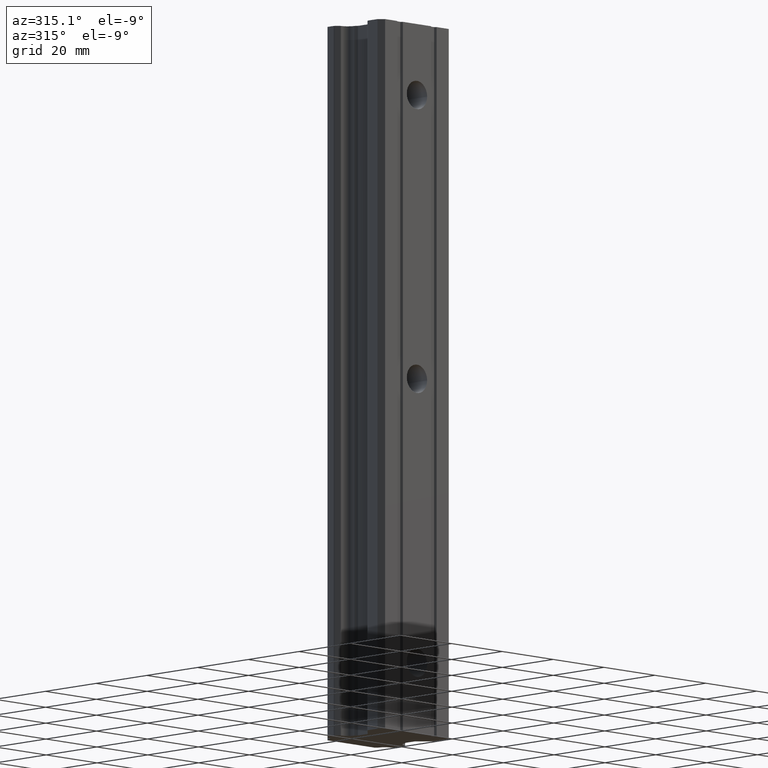
[diagram: clean part render]
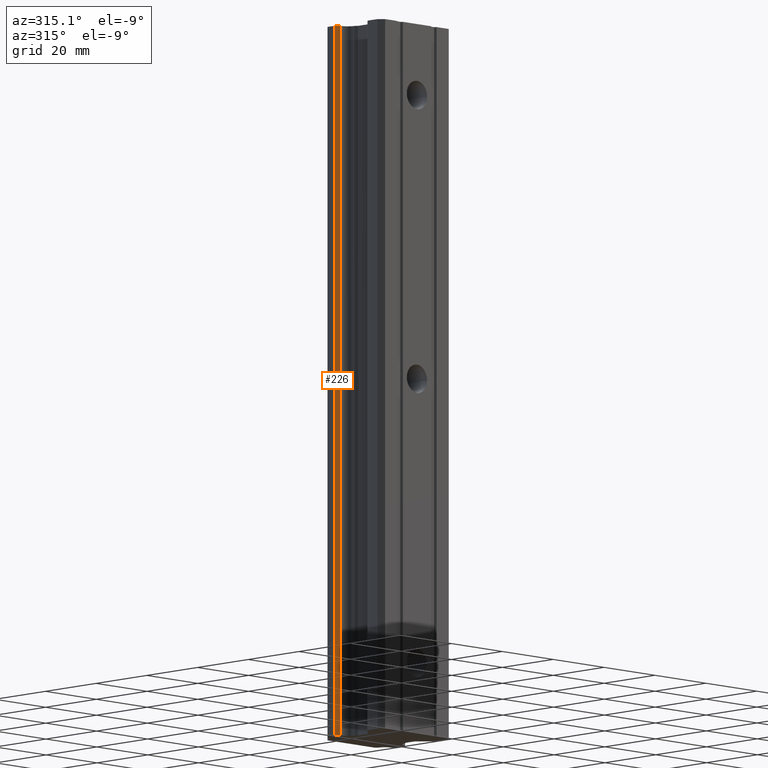
[diagram: same view with one face highlighted and labeled with its STEP entity id]
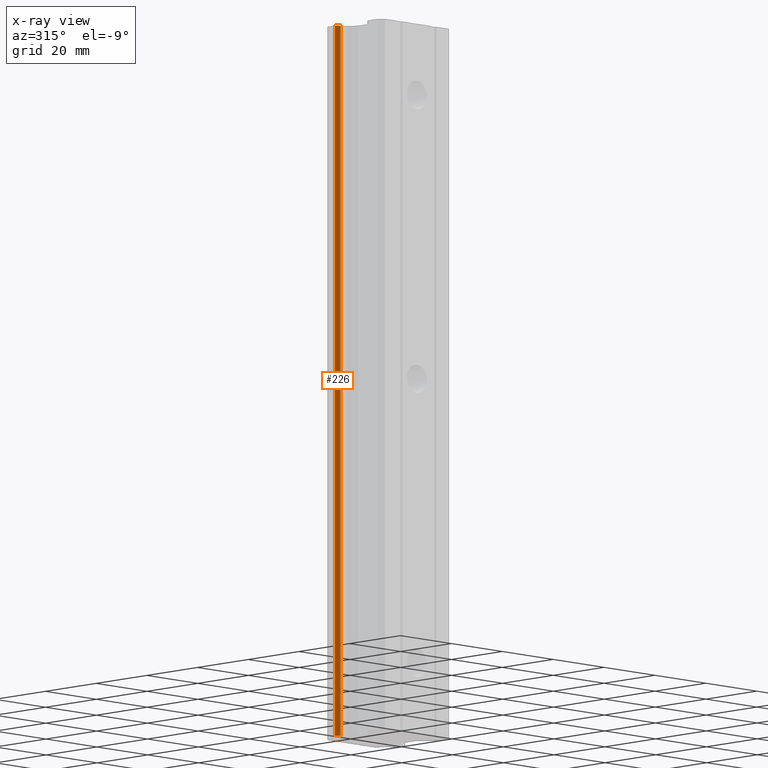
[diagram: x-ray of the same camera — body ghosted, the highlighted face saturated]
A machine part, auxiliary view. The second image highlights one B-rep face of the part: STEP entity #226.
The next image is the same camera in x-ray: the body ghosted, the highlighted face saturated — about 0% of this face is hidden behind the body in this view.
In plain terms, the highlighted planar face has unit normal (-0.7071, -0.7071, 0).
Its self-contained STEP definition (entity closure, byte-faithful):
#152 = ORIENTED_EDGE ( 'NONE', *, *, #153, .T. ) ;
#153 = EDGE_CURVE ( 'NONE', #201, #231, #990, .T. ) ;
#196 = ORIENTED_EDGE ( 'NONE', *, *, #197, .T. ) ;
#197 = EDGE_CURVE ( 'NONE', #230, #198, #1203, .T. ) ;
#198 = VERTEX_POINT ( 'NONE', #1199 ) ;
#199 = ORIENTED_EDGE ( 'NONE', *, *, #200, .F. ) ;
#200 = EDGE_CURVE ( 'NONE', #201, #198, #1198, .T. ) ;
#201 = VERTEX_POINT ( 'NONE', #1241 ) ;
#226 = ADVANCED_FACE ( 'NONE', ( #1103 ), #1101, .T. ) ;
#227 = EDGE_LOOP ( 'NONE', ( #228, #196, #199, #152 ) ) ;
#228 = ORIENTED_EDGE ( 'NONE', *, *, #229, .F. ) ;
#229 = EDGE_CURVE ( 'NONE', #230, #231, #1102, .T. ) ;
#230 = VERTEX_POINT ( 'NONE', #1173 ) ;
#231 = VERTEX_POINT ( 'NONE', #1172 ) ;
#983 = DIRECTION ( 'NONE',  ( -0.7071067811863974700, 0.7071067811866975600, 0.0000000000000000000 ) ) ;
#984 = VECTOR ( 'NONE', #983, 1000.000000000000100 ) ;
#985 = CARTESIAN_POINT ( 'NONE',  ( -13.82426406871000100, -7.437416476490000200, 100.0000000000000000 ) ) ;
#990 = LINE ( 'NONE', #985, #984 ) ;
#1098 = DIRECTION ( 'NONE',  ( -0.7071067811866975600, -0.7071067811863974700, 0.0000000000000000000 ) ) ;
#1099 = CARTESIAN_POINT ( 'NONE',  ( -13.82426406871000100, -7.437416476490000200, -100.0000000000000000 ) ) ;
#1100 = AXIS2_PLACEMENT_3D ( 'NONE', #1099, #1098, #1177 ) ;
#1101 = PLANE ( 'NONE',  #1100 ) ;
#1102 = LINE ( 'NONE', #1176, #1175 ) ;
#1103 = FACE_OUTER_BOUND ( 'NONE', #227, .T. ) ;
#1172 = CARTESIAN_POINT ( 'NONE',  ( -13.82426406871500800, -7.437416476485919000, 100.0000000000000000 ) ) ;
#1173 = CARTESIAN_POINT ( 'NONE',  ( -13.82426406871500800, -7.437416476485919000, -100.0000000000000000 ) ) ;
#1174 = DIRECTION ( 'NONE',  ( 0.0000000000000000000, 0.0000000000000000000, 1.000000000000000000 ) ) ;
#1175 = VECTOR ( 'NONE', #1174, 1000.000000000000000 ) ;
#1176 = CARTESIAN_POINT ( 'NONE',  ( -13.82426406871892900, -7.437416476482928500, -100.0000000000000000 ) ) ;
#1177 = DIRECTION ( 'NONE',  ( 0.7071067811863974700, -0.7071067811866975600, 0.0000000000000000000 ) ) ;
#1196 = DIRECTION ( 'NONE',  ( 0.0000000000000000000, 0.0000000000000000000, -1.000000000000000000 ) ) ;
#1197 = CARTESIAN_POINT ( 'NONE',  ( -12.72297497281342900, -8.538705572390428600, -100.0000000000000000 ) ) ;
#1198 = LINE ( 'NONE', #1197, #1242 ) ;
#1199 = CARTESIAN_POINT ( 'NONE',  ( -12.72297497281687700, -8.538705572385286000, -100.0000000000000000 ) ) ;
#1200 = DIRECTION ( 'NONE',  ( 0.7071067811863974700, -0.7071067811866975600, 0.0000000000000000000 ) ) ;
#1201 = VECTOR ( 'NONE', #1200, 1000.000000000000100 ) ;
#1202 = CARTESIAN_POINT ( 'NONE',  ( -13.82426406871000100, -7.437416476490000200, -100.0000000000000000 ) ) ;
#1203 = LINE ( 'NONE', #1202, #1201 ) ;
#1241 = CARTESIAN_POINT ( 'NONE',  ( -12.72297497281687700, -8.538705572385286000, 100.0000000000000000 ) ) ;
#1242 = VECTOR ( 'NONE', #1196, 1000.000000000000000 ) ;